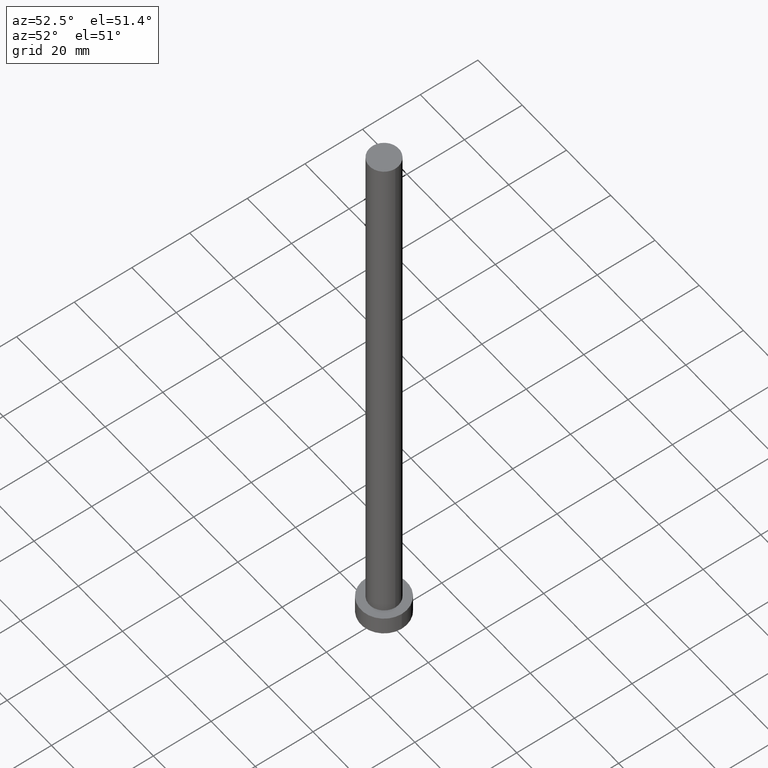
[diagram: clean part render]
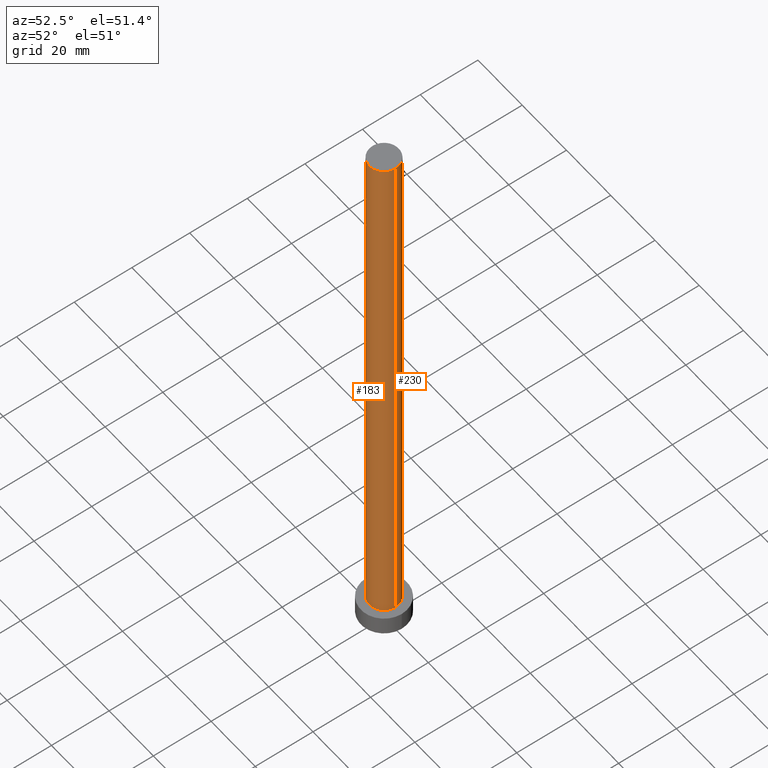
[diagram: same view with one multi-face feature highlighted, each face labeled with its STEP entity id]
A machine part, auxiliary view. The highlighted faces form ONE feature: a constant-radius fillet chain: 2 tangent blend faces with common blend radius 5.1 mm. The faces share edges in the B-rep.
Their STEP definitions:
[1] entity #230 (Cylinder):
#6 = AXIS2_PLACEMENT_3D ( 'NONE', #141, #210, #88 ) ;
#17 = DIRECTION ( 'NONE',  ( 1.000000000000000000, 0.000000000000000000, 0.000000000000000000 ) ) ;
#18 = VECTOR ( 'NONE', #221, 1000.000000000000000 ) ;
#22 = ORIENTED_EDGE ( 'NONE', *, *, #233, .F. ) ;
#34 = ORIENTED_EDGE ( 'NONE', *, *, #207, .F. ) ;
#42 = LINE ( 'NONE', #147, #254 ) ;
#47 = DIRECTION ( 'NONE',  ( -1.000000000000000000, 0.000000000000000000, 0.000000000000000000 ) ) ;
#54 = CARTESIAN_POINT ( 'NONE',  ( -5.100000000000001421, 0.000000000000000000, 200.0000000000000000 ) ) ;
#64 = CARTESIAN_POINT ( 'NONE',  ( 5.100000000000001421, 6.245698675651502811E-16, 200.0000000000000000 ) ) ;
#71 = EDGE_LOOP ( 'NONE', ( #34, #121, #150, #22 ) ) ;
#76 = VERTEX_POINT ( 'NONE', #54 ) ;
#88 = DIRECTION ( 'NONE',  ( 1.000000000000000000, 0.000000000000000000, 0.000000000000000000 ) ) ;
#114 = EDGE_CURVE ( 'NONE', #181, #238, #200, .T. ) ;
#118 = CARTESIAN_POINT ( 'NONE',  ( 0.000000000000000000, 0.000000000000000000, 6.500000000000000000 ) ) ;
#121 = ORIENTED_EDGE ( 'NONE', *, *, #114, .T. ) ;
#124 = DIRECTION ( 'NONE',  ( -0.000000000000000000, -0.000000000000000000, -1.000000000000000000 ) ) ;
#126 = CARTESIAN_POINT ( 'NONE',  ( 0.000000000000000000, 0.000000000000000000, 200.0000000000000000 ) ) ;
#141 = CARTESIAN_POINT ( 'NONE',  ( 0.000000000000000000, 0.000000000000000000, 200.0000000000000000 ) ) ;
#145 = CARTESIAN_POINT ( 'NONE',  ( -5.100000000000001421, 0.000000000000000000, 6.500000000000000000 ) ) ;
#147 = CARTESIAN_POINT ( 'NONE',  ( -5.100000000000001421, 0.000000000000000000, 200.0000000000000000 ) ) ;
#150 = ORIENTED_EDGE ( 'NONE', *, *, #192, .T. ) ;
#152 = CARTESIAN_POINT ( 'NONE',  ( 5.100000000000001421, 6.245698675651502811E-16, 200.0000000000000000 ) ) ;
#164 = CIRCLE ( 'NONE', #6, 5.100000000000001421 ) ;
#175 = AXIS2_PLACEMENT_3D ( 'NONE', #126, #237, #47 ) ;
#181 = VERTEX_POINT ( 'NONE', #64 ) ;
#191 = DIRECTION ( 'NONE',  ( 0.000000000000000000, 0.000000000000000000, 1.000000000000000000 ) ) ;
#192 = EDGE_CURVE ( 'NONE', #238, #225, #194, .T. ) ;
#194 = CIRCLE ( 'NONE', #229, 5.100000000000001421 ) ;
#196 = CARTESIAN_POINT ( 'NONE',  ( 5.100000000000001421, 6.245698675651502811E-16, 6.500000000000000000 ) ) ;
#200 = LINE ( 'NONE', #152, #18 ) ;
#207 = EDGE_CURVE ( 'NONE', #181, #76, #164, .T. ) ;
#210 = DIRECTION ( 'NONE',  ( 0.000000000000000000, 0.000000000000000000, 1.000000000000000000 ) ) ;
#221 = DIRECTION ( 'NONE',  ( -0.000000000000000000, -0.000000000000000000, -1.000000000000000000 ) ) ;
#225 = VERTEX_POINT ( 'NONE', #145 ) ;
#229 = AXIS2_PLACEMENT_3D ( 'NONE', #118, #191, #17 ) ;
#230 = ADVANCED_FACE ( 'NONE', ( #239 ), #236, .T. ) ;
#233 = EDGE_CURVE ( 'NONE', #76, #225, #42, .T. ) ;
#236 = CYLINDRICAL_SURFACE ( 'NONE', #175, 5.100000000000001421 ) ;
#237 = DIRECTION ( 'NONE',  ( -0.000000000000000000, -0.000000000000000000, -1.000000000000000000 ) ) ;
#238 = VERTEX_POINT ( 'NONE', #196 ) ;
#239 = FACE_OUTER_BOUND ( 'NONE', #71, .T. ) ;
#254 = VECTOR ( 'NONE', #124, 1000.000000000000000 ) ;
[2] entity #183 (Cylinder):
#15 = CARTESIAN_POINT ( 'NONE',  ( 0.000000000000000000, 0.000000000000000000, 200.0000000000000000 ) ) ;
#18 = VECTOR ( 'NONE', #221, 1000.000000000000000 ) ;
#19 = DIRECTION ( 'NONE',  ( 1.000000000000000000, 0.000000000000000000, 0.000000000000000000 ) ) ;
#23 = AXIS2_PLACEMENT_3D ( 'NONE', #120, #255, #19 ) ;
#42 = LINE ( 'NONE', #147, #254 ) ;
#54 = CARTESIAN_POINT ( 'NONE',  ( -5.100000000000001421, 0.000000000000000000, 200.0000000000000000 ) ) ;
#64 = CARTESIAN_POINT ( 'NONE',  ( 5.100000000000001421, 6.245698675651502811E-16, 200.0000000000000000 ) ) ;
#66 = DIRECTION ( 'NONE',  ( 0.000000000000000000, 0.000000000000000000, 1.000000000000000000 ) ) ;
#69 = ORIENTED_EDGE ( 'NONE', *, *, #114, .F. ) ;
#74 = CIRCLE ( 'NONE', #82, 5.100000000000001421 ) ;
#76 = VERTEX_POINT ( 'NONE', #54 ) ;
#82 = AXIS2_PLACEMENT_3D ( 'NONE', #160, #66, #102 ) ;
#87 = DIRECTION ( 'NONE',  ( -1.000000000000000000, 0.000000000000000000, 0.000000000000000000 ) ) ;
#89 = CYLINDRICAL_SURFACE ( 'NONE', #99, 5.100000000000001421 ) ;
#99 = AXIS2_PLACEMENT_3D ( 'NONE', #15, #253, #87 ) ;
#102 = DIRECTION ( 'NONE',  ( 1.000000000000000000, 0.000000000000000000, 0.000000000000000000 ) ) ;
#106 = ORIENTED_EDGE ( 'NONE', *, *, #233, .T. ) ;
#114 = EDGE_CURVE ( 'NONE', #181, #238, #200, .T. ) ;
#117 = CIRCLE ( 'NONE', #23, 5.100000000000001421 ) ;
#120 = CARTESIAN_POINT ( 'NONE',  ( 0.000000000000000000, 0.000000000000000000, 6.500000000000000000 ) ) ;
#124 = DIRECTION ( 'NONE',  ( -0.000000000000000000, -0.000000000000000000, -1.000000000000000000 ) ) ;
#145 = CARTESIAN_POINT ( 'NONE',  ( -5.100000000000001421, 0.000000000000000000, 6.500000000000000000 ) ) ;
#146 = ORIENTED_EDGE ( 'NONE', *, *, #188, .F. ) ;
#147 = CARTESIAN_POINT ( 'NONE',  ( -5.100000000000001421, 0.000000000000000000, 200.0000000000000000 ) ) ;
#152 = CARTESIAN_POINT ( 'NONE',  ( 5.100000000000001421, 6.245698675651502811E-16, 200.0000000000000000 ) ) ;
#158 = FACE_OUTER_BOUND ( 'NONE', #171, .T. ) ;
#160 = CARTESIAN_POINT ( 'NONE',  ( 0.000000000000000000, 0.000000000000000000, 200.0000000000000000 ) ) ;
#171 = EDGE_LOOP ( 'NONE', ( #69, #146, #106, #205 ) ) ;
#181 = VERTEX_POINT ( 'NONE', #64 ) ;
#183 = ADVANCED_FACE ( 'NONE', ( #158 ), #89, .T. ) ;
#188 = EDGE_CURVE ( 'NONE', #76, #181, #74, .T. ) ;
#196 = CARTESIAN_POINT ( 'NONE',  ( 5.100000000000001421, 6.245698675651502811E-16, 6.500000000000000000 ) ) ;
#200 = LINE ( 'NONE', #152, #18 ) ;
#205 = ORIENTED_EDGE ( 'NONE', *, *, #215, .T. ) ;
#215 = EDGE_CURVE ( 'NONE', #225, #238, #117, .T. ) ;
#221 = DIRECTION ( 'NONE',  ( -0.000000000000000000, -0.000000000000000000, -1.000000000000000000 ) ) ;
#225 = VERTEX_POINT ( 'NONE', #145 ) ;
#233 = EDGE_CURVE ( 'NONE', #76, #225, #42, .T. ) ;
#238 = VERTEX_POINT ( 'NONE', #196 ) ;
#253 = DIRECTION ( 'NONE',  ( -0.000000000000000000, -0.000000000000000000, -1.000000000000000000 ) ) ;
#254 = VECTOR ( 'NONE', #124, 1000.000000000000000 ) ;
#255 = DIRECTION ( 'NONE',  ( 0.000000000000000000, 0.000000000000000000, 1.000000000000000000 ) ) ;